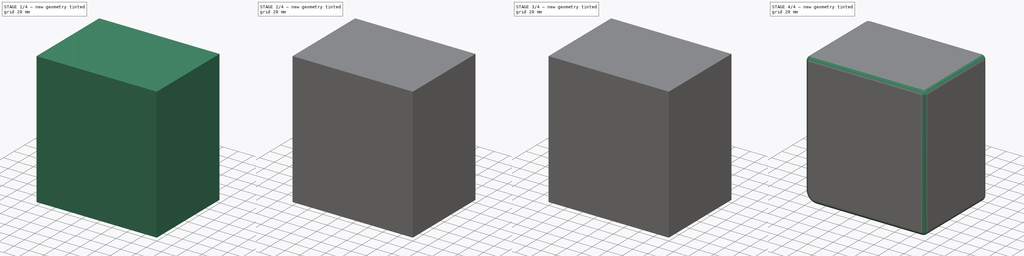
[diagram: build sequence overview — one tinted view per stage of 4, left to right]
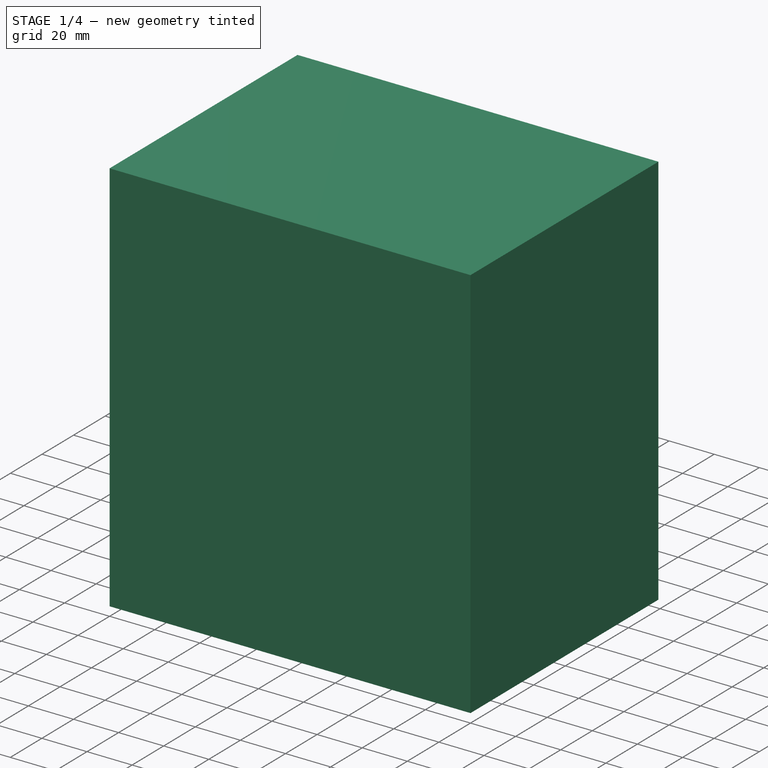
[diagram: stage 1 of 4 — iso view after this stage's code; geometry added in this stage tinted green]
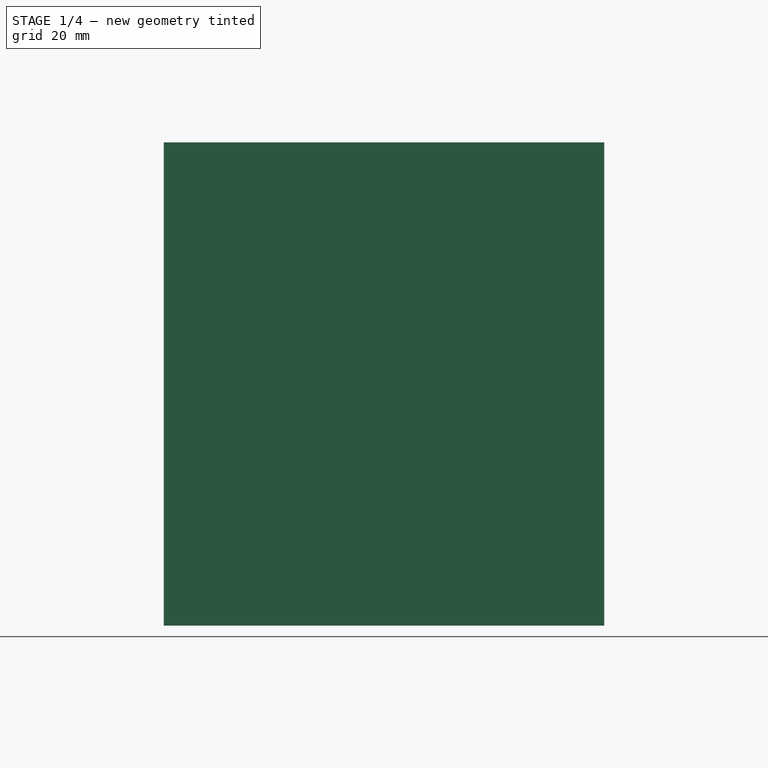
[diagram: stage 1 of 4 — front view after this stage's code; geometry added in this stage tinted green]
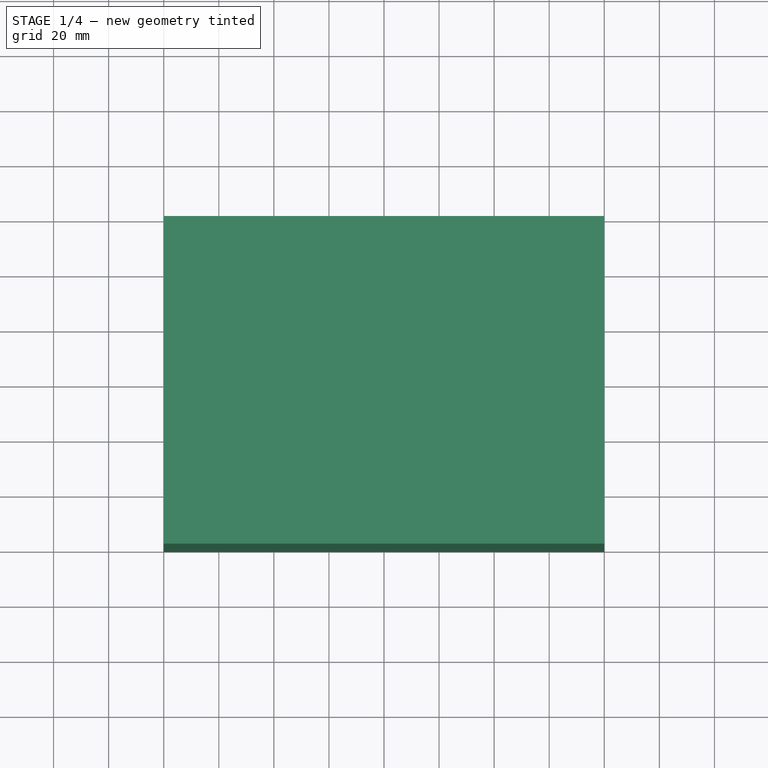
[diagram: stage 1 of 4 — top view after this stage's code; geometry added in this stage tinted green]
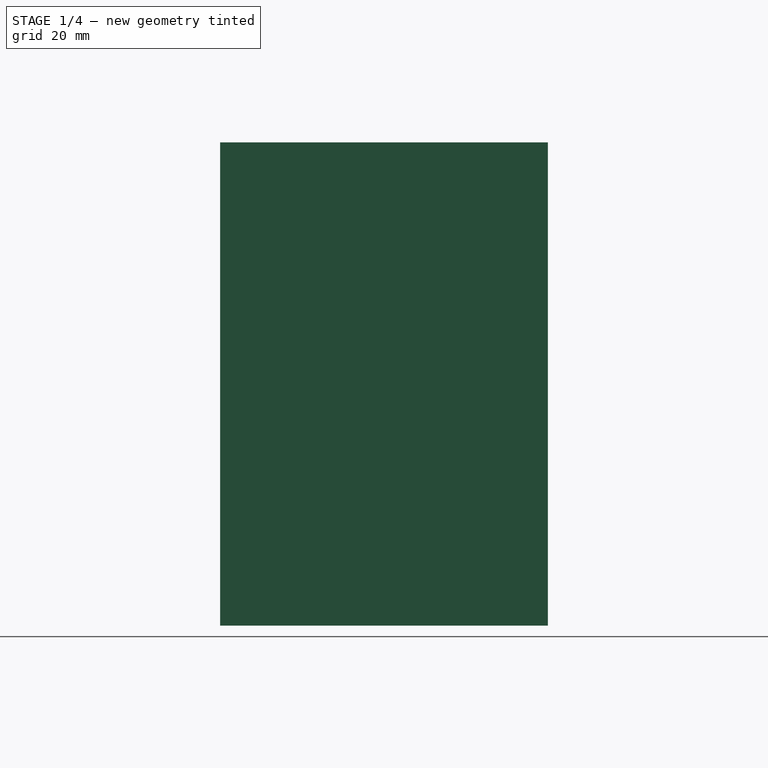
[diagram: stage 1 of 4 — right view after this stage's code; geometry added in this stage tinted green]
FCSTD DOCUMENT  (FreeCAD 0.18R4 (GitTag))
Label: corner-block_front-top-right
License: All rights reserved
LicenseURL: http://en.wikipedia.org/wiki/All_rights_reserved
objects: Sketcher::SketchObject×6, PartDesign::Pad×3, PartDesign::Pocket×3, PartDesign::Fillet×2, PartDesign::Thickness×1, PartDesign::Body×1
note: 22 computed .brp shape members not serialized (recipe doc carries the construction recipe); baked Part::Feature solids carry a one-line shape summary decoded from their .brp

FEATURE [Sketcher::SketchObject] Sketch
  MapMode = 5
  Support = -> [XY_Plane]
  sketch-geometry (4):
    g0: LineSegment StartX=0 StartY=0 StartZ=0 EndX=160 EndY=0 EndZ=0
    g1: LineSegment StartX=160 StartY=0 StartZ=0 EndX=160 EndY=119 EndZ=0
    g2: LineSegment StartX=160 StartY=119 StartZ=0 EndX=0 EndY=119 EndZ=0
    g3: LineSegment StartX=0 StartY=119 StartZ=0 EndX=0 EndY=0 EndZ=0
  constraints (11):
    c: Coincident(g0,g1)
    c: Coincident(g1,g2)
    c: Coincident(g2,g3)
    c: Coincident(g3,g0)
    c: Horizontal(g0)
    c: Horizontal(g2)
    c: Vertical(g1)
    c: Vertical(g3)
    c: Coincident(g0,g-1)
    c: DistanceY(g1,g1) = 119
    c: DistanceX(g0,g0) = 160
FEATURE [PartDesign::Pad] Pad
  Length = 175.5
  Length2 = 100
  Profile = -> Sketch
  Refine = true
  Type = 0
FEATURE [PartDesign::Thickness] Thickness
  Base = -> Pad [Face3]
  BaseFeature = -> Pad
  Join = 1
  Mode = 0
  Reversed = true
  Value = 11
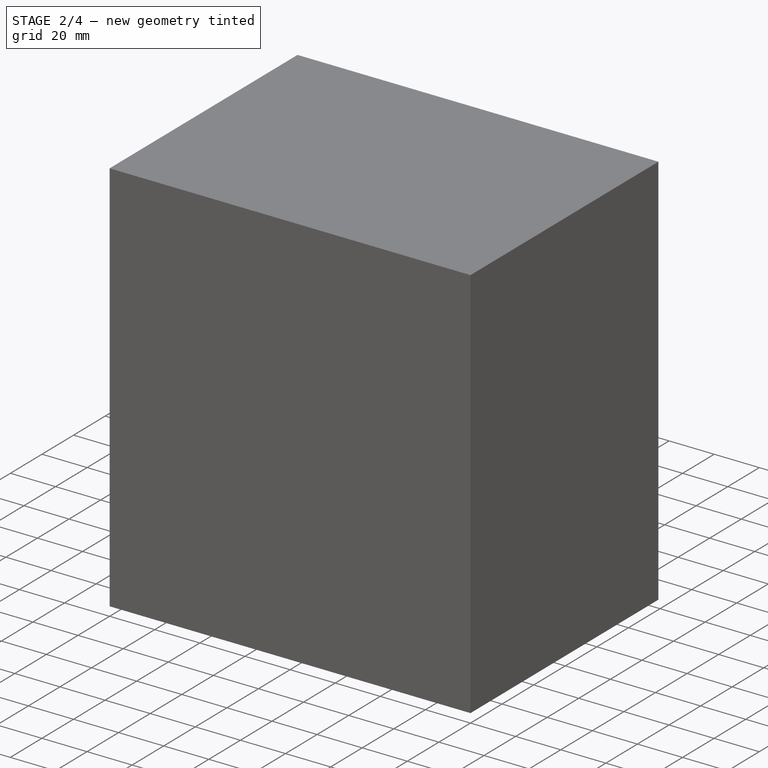
[diagram: stage 2 of 4 — iso view after this stage's code; geometry added in this stage tinted green]
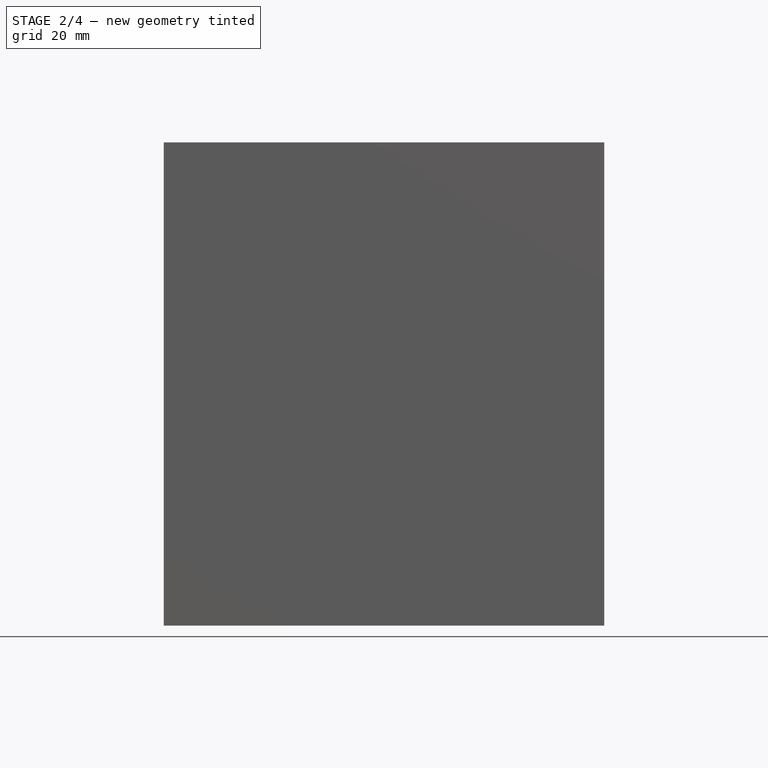
[diagram: stage 2 of 4 — front view after this stage's code; geometry added in this stage tinted green]
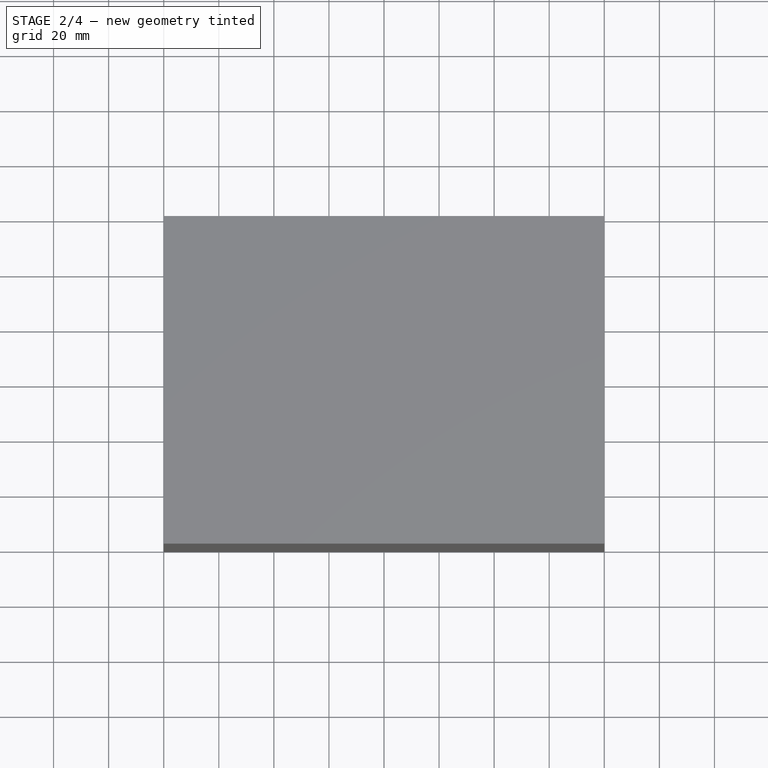
[diagram: stage 2 of 4 — top view after this stage's code; geometry added in this stage tinted green]
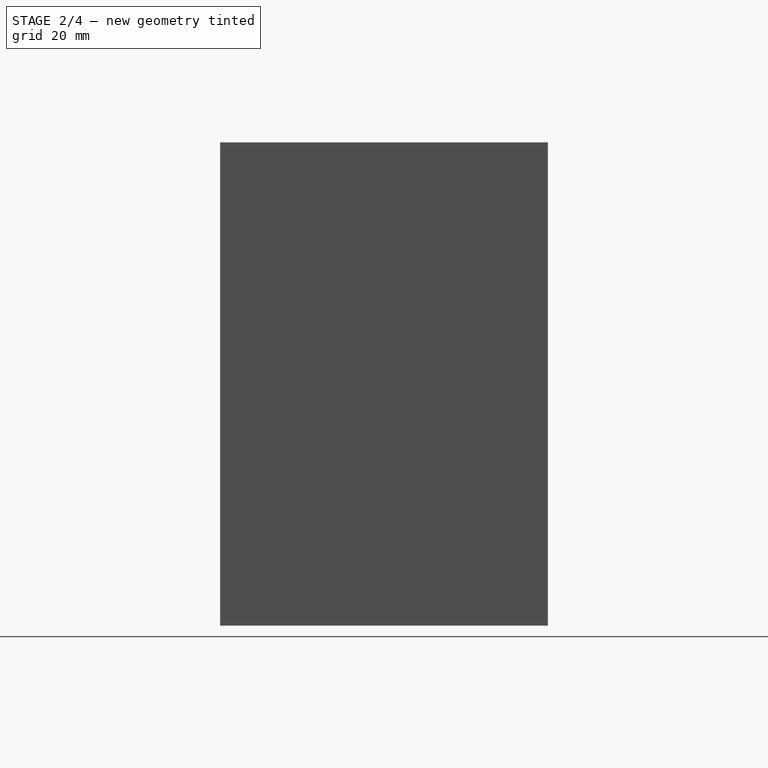
[diagram: stage 2 of 4 — right view after this stage's code; geometry added in this stage tinted green]
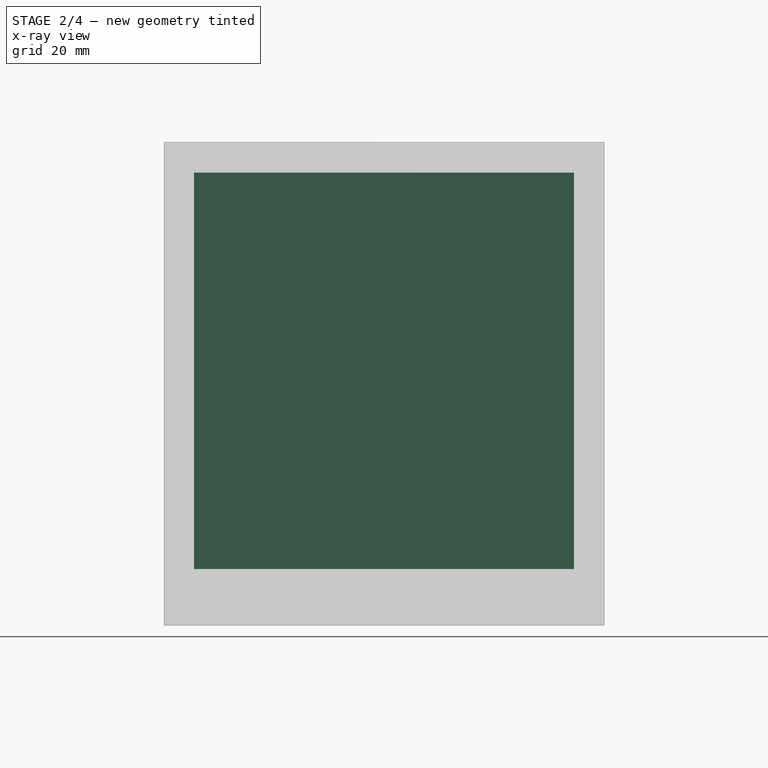
[diagram: stage 2 of 4 — x-ray composite at the front view; earlier geometry ghosted, this stage's added geometry solid]
FEATURE [Sketcher::SketchObject] Sketch001
  ExternalGeometry = -> [Thickness]
  MapMode = 5
  Placement = pos=(0,119,0) rot=(0,0.707107,0.707107;3.14159rad)
  Support = -> [Thickness]
  sketch-geometry (4):
    g0: LineSegment StartX=-149 StartY=11 StartZ=0 EndX=-11 EndY=11 EndZ=0
    g1: LineSegment StartX=-11 StartY=11 StartZ=0 EndX=-11 EndY=20.5 EndZ=0
    g2: LineSegment StartX=-11 StartY=20.5 StartZ=0 EndX=-149 EndY=20.5 EndZ=0
    g3: LineSegment StartX=-149 StartY=20.5 StartZ=0 EndX=-149 EndY=11 EndZ=0
  constraints (10):
    c: Coincident(g0,g1)
    c: Coincident(g1,g2)
    c: Coincident(g2,g3)
    c: Coincident(g3,g0)
    c: Horizontal(g2)
    c: Vertical(g1)
    c: Vertical(g3)
    c: Coincident(g0,g-3)
    c: DistanceY(g-1,g1) = 20.5
    c: Coincident(g0,g-3)
FEATURE [PartDesign::Pad] Pad001
  BaseFeature = -> Thickness
  Length = 10
  Length2 = 100
  Profile = -> Sketch001
  Refine = true
  Reversed = true
  Type = 3
  UpToFace = -> Thickness [Face7]
FEATURE [Sketcher::SketchObject] Sketch002
  ExternalGeometry = -> [Pad001]
  MapMode = 5
  Placement = pos=(0,119,0) rot=(0,0.707107,0.707107;3.14159rad)
  Support = -> [Pad001]
  sketch-geometry (4):
    g0: LineSegment StartX=0 StartY=0 StartZ=0 EndX=-160 EndY=0 EndZ=0
    g1: LineSegment StartX=-160 StartY=0 StartZ=0 EndX=-160 EndY=175.5 EndZ=0
    g2: LineSegment StartX=-160 StartY=175.5 StartZ=0 EndX=0 EndY=175.5 EndZ=0
    g3: LineSegment StartX=0 StartY=175.5 StartZ=0 EndX=0 EndY=0 EndZ=0
  constraints (10):
    c: Coincident(g0,g1)
    c: Coincident(g1,g2)
    c: Coincident(g2,g3)
    c: Coincident(g3,g0)
    c: Horizontal(g0)
    c: Horizontal(g2)
    c: Vertical(g1)
    c: Vertical(g3)
    c: Coincident(g0,g-1)
    c: Coincident(g1,g-3)
FEATURE [PartDesign::Pad] Pad002
  BaseFeature = -> Pad001
  Length = 28.5
  Length2 = 100
  Profile = -> Sketch002
  Refine = true
  Reversed = true
  Type = 0
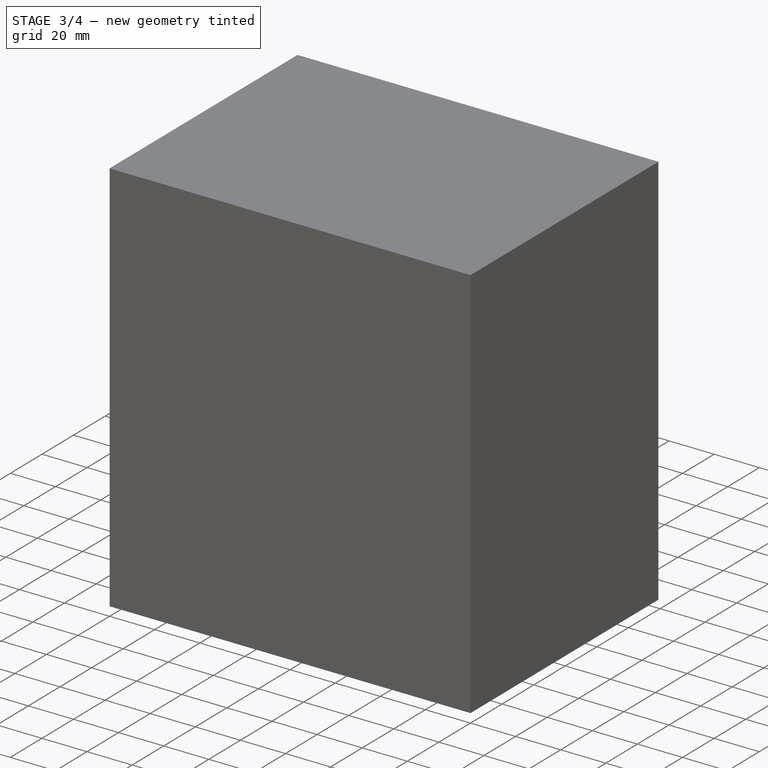
[diagram: stage 3 of 4 — iso view after this stage's code; geometry added in this stage tinted green]
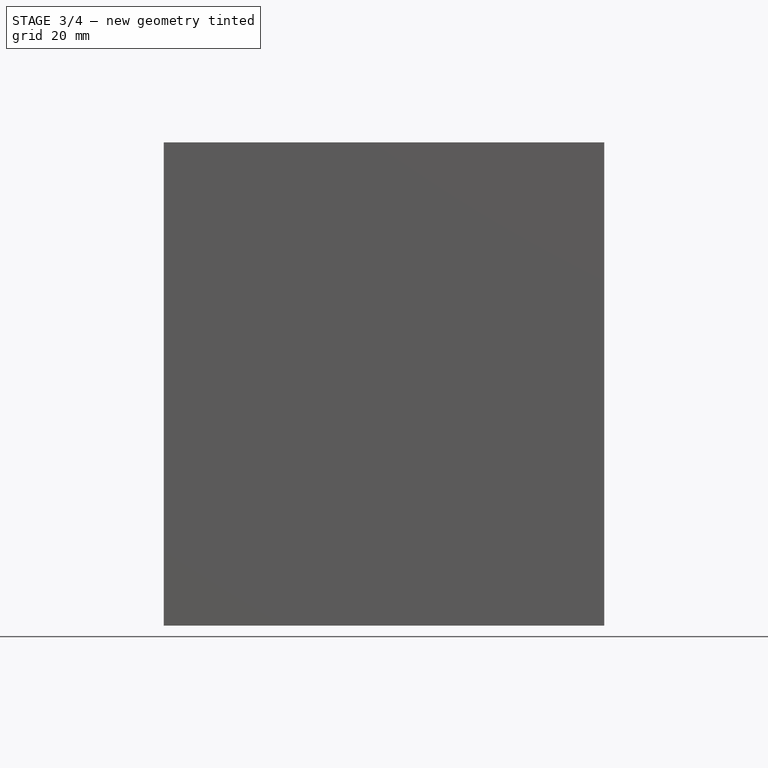
[diagram: stage 3 of 4 — front view after this stage's code; geometry added in this stage tinted green]
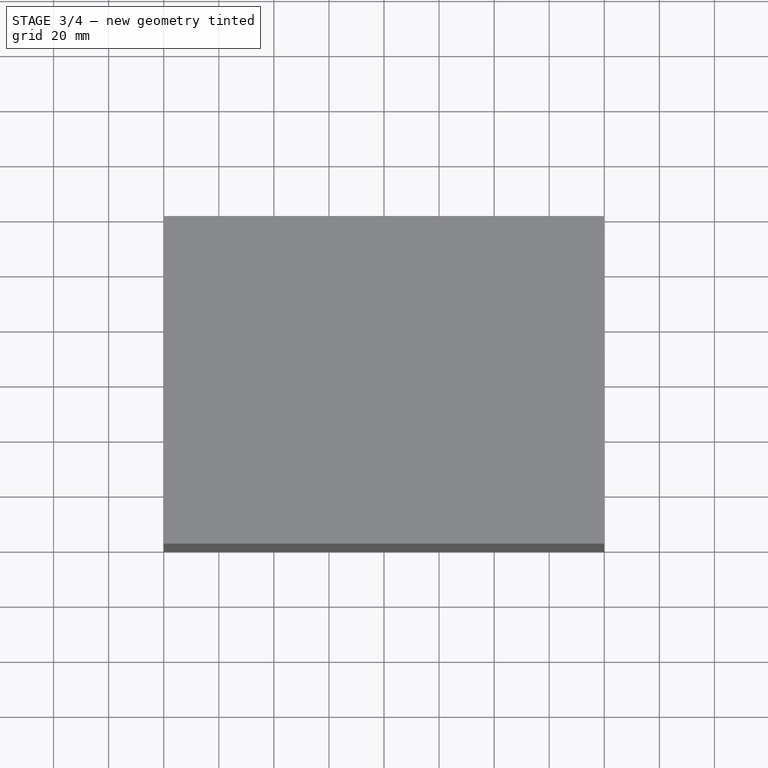
[diagram: stage 3 of 4 — top view after this stage's code; geometry added in this stage tinted green]
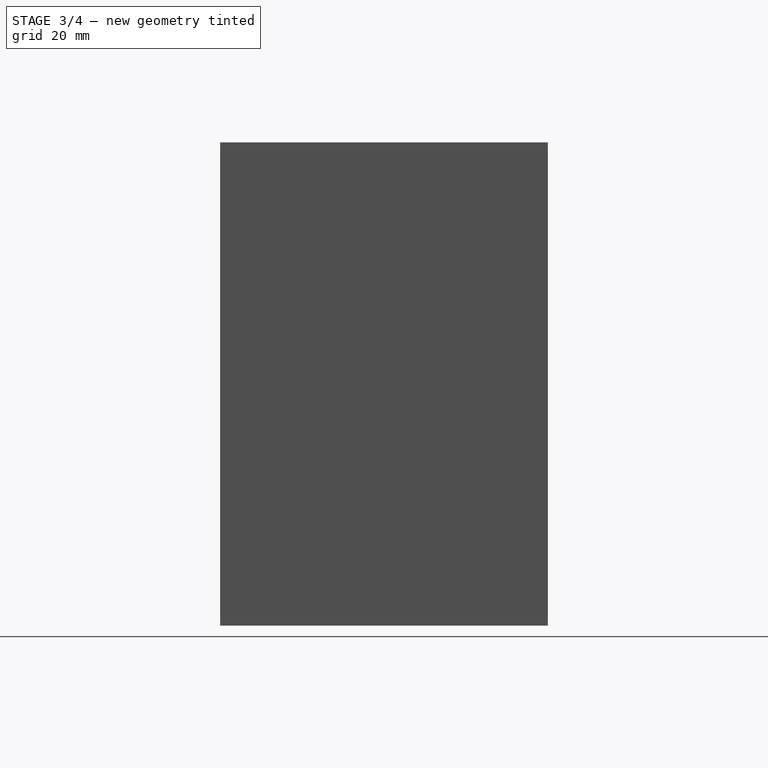
[diagram: stage 3 of 4 — right view after this stage's code; geometry added in this stage tinted green]
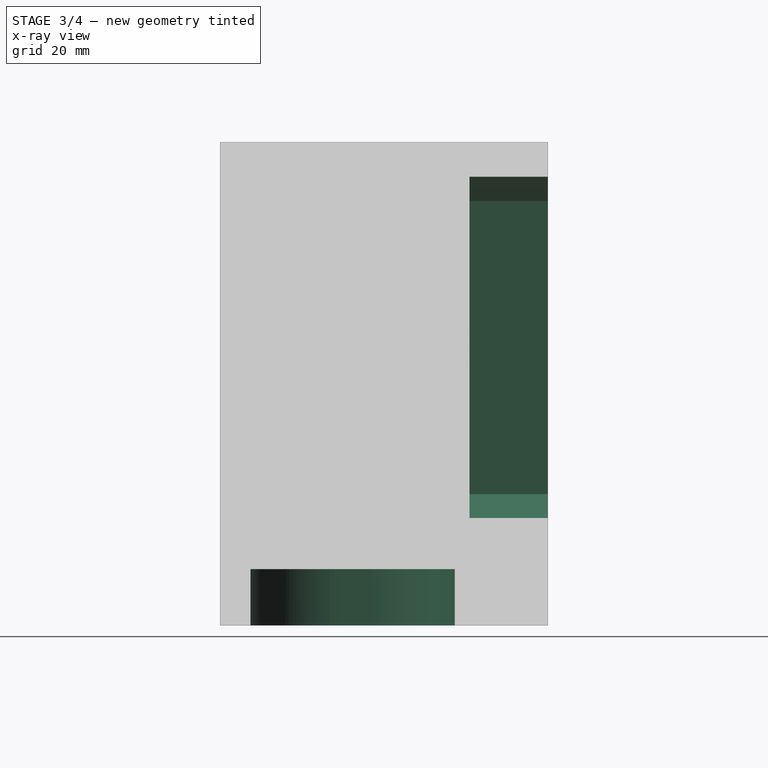
[diagram: stage 3 of 4 — x-ray composite at the right view; earlier geometry ghosted, this stage's added geometry solid]
FEATURE [Sketcher::SketchObject] Sketch003
  ExternalGeometry = -> [Pad002]
  MapMode = 5
  Placement = pos=(0,0,0) rot=(1,0,0;3.14159rad)
  Support = -> [Pad002]
  sketch-geometry (4):
    g0: ArcOfCircle CenterX=89 CenterY=-42.75 CenterZ=0 NormalX=0 NormalY=0 NormalZ=1 AngleXU=0 Radius=31.75 StartAngle=2.2975e-06 EndAngle=3.14159
    g1: ArcOfCircle CenterX=89 CenterY=-53.45 CenterZ=0 NormalX=0 NormalY=0 NormalZ=1 AngleXU=0 Radius=31.75 StartAngle=3.14159 EndAngle=6.28319
    g2: LineSegment StartX=57.25 StartY=-42.75 StartZ=0 EndX=57.25 EndY=-53.4501 EndZ=0
    g3: LineSegment StartX=120.75 StartY=-53.4499 StartZ=0 EndX=120.75 EndY=-42.7499 EndZ=0
  constraints (14):
    c: Equal(g0,g1)
    c: Radius(g0) = 31.75
    c: DistanceY(g-4,g1) = 65.55
    c: DistanceY(g0,g-3) = 42.75
    c: Coincident(g0,g2)
    c: Coincident(g1,g2)
    c: Coincident(g1,g3)
    c: Coincident(g0,g3)
    c: Tangent(g1,g2)
    c: Tangent(g2,g0)
    c: Tangent(g3,g0)
    c: Tangent(g1,g3)
    c: DistanceX(g1,g-4) = 71
    c: DistanceX(g0,g-3) = 71
FEATURE [PartDesign::Pocket] Pocket
  BaseFeature = -> Pad002
  Length = 20.5
  Length2 = 100
  Profile = -> Sketch003
  Refine = true
  Type = 0
FEATURE [Sketcher::SketchObject] Sketch004
  MapMode = 5
  Placement = pos=(0,0,0) rot=(0.57735,-0.57735,-0.57735;2.0944rad)
  Support = -> [Pocket]
  sketch-geometry (4):
    g0: ArcOfCircle CenterX=-65 CenterY=101.5 CenterZ=0 NormalX=0 NormalY=0 NormalZ=1 AngleXU=0 Radius=25.5 StartAngle=1.5708 EndAngle=4.71239
    g1: ArcOfCircle CenterX=-36.5 CenterY=101.5 CenterZ=0 NormalX=0 NormalY=0 NormalZ=1 AngleXU=0 Radius=25.5 StartAngle=4.71239 EndAngle=7.85398
    g2: LineSegment StartX=-65 StartY=76 StartZ=0 EndX=-36.5 EndY=76 EndZ=0
    g3: LineSegment StartX=-65 StartY=127 StartZ=0 EndX=-36.5 EndY=127 EndZ=0
  constraints (10):
    c: Tangent(g0,g3) = 1.5708
    c: Tangent(g0,g2) = -1.5708
    c: Tangent(g2,g1) = -1.5708
    c: Tangent(g3,g1) = 1.5708
    c: Horizontal(g2)
    c: Equal(g0,g1)
    c: Radius(g0) = 25.5
    c: DistanceX(g3,g3) = 28.5
    c: DistanceX(g1,g-1) = 36.5
    c: DistanceY(g-1,g0) = 101.5
FEATURE [PartDesign::Pocket] Pocket001
  BaseFeature = -> Pocket
  Length = 11
  Length2 = 100
  Profile = -> Sketch004
  Refine = true
  Type = 0
FEATURE [Sketcher::SketchObject] Sketch005
  ExternalGeometry = -> [Pocket001]
  MapMode = 5
  Placement = pos=(0,119,0) rot=(0,0.707107,0.707107;3.14159rad)
  Support = -> [Pocket001]
  sketch-geometry (5):
    g0: ArcOfCircle CenterX=-89 CenterY=101 CenterZ=0 NormalX=0 NormalY=0 NormalZ=1 AngleXU=0 Radius=62 StartAngle=1.03317 EndAngle=2.10842
    g1: LineSegment StartX=-57.25 StartY=154.254 StartZ=0 EndX=-57.25 EndY=47.7465 EndZ=0
    g2: LineSegment StartX=-120.75 StartY=47.7465 StartZ=0 EndX=-120.75 EndY=47.7465 EndZ=0
    g3: LineSegment StartX=-120.75 StartY=47.7465 StartZ=0 EndX=-120.75 EndY=154.254 EndZ=0
    g4: ArcOfCircle CenterX=-89 CenterY=101 CenterZ=0 NormalX=0 NormalY=0 NormalZ=1 AngleXU=0 Radius=62 StartAngle=4.17476 EndAngle=5.25001
  constraints (16):
    c: Coincident(g2,g3)
    c: Horizontal(g2)
    c: Vertical(g1)
    c: Vertical(g3)
    c: PointOnObject(g2,g0)
    c: Coincident(g4,g1)
    c: Equal(g0,g4)
    c: Coincident(g4,g2)
    c: Coincident(g0,g4)
    c: Coincident(g0,g3)
    c: Coincident(g0,g1)
    c: DistanceX(g0,g0) = 63.5
    c: Radius(g0) = 62
    c: DistanceX(g0,g0) = 31.75
    c: DistanceY(g-1,g0) = 101
    c: DistanceX(g-3,g2) = 39.25
FEATURE [PartDesign::Pocket] Pocket002
  BaseFeature = -> Pocket001
  Length = 32
  Length2 = 1
  Profile = -> Sketch005
  Refine = true
  Type = 4
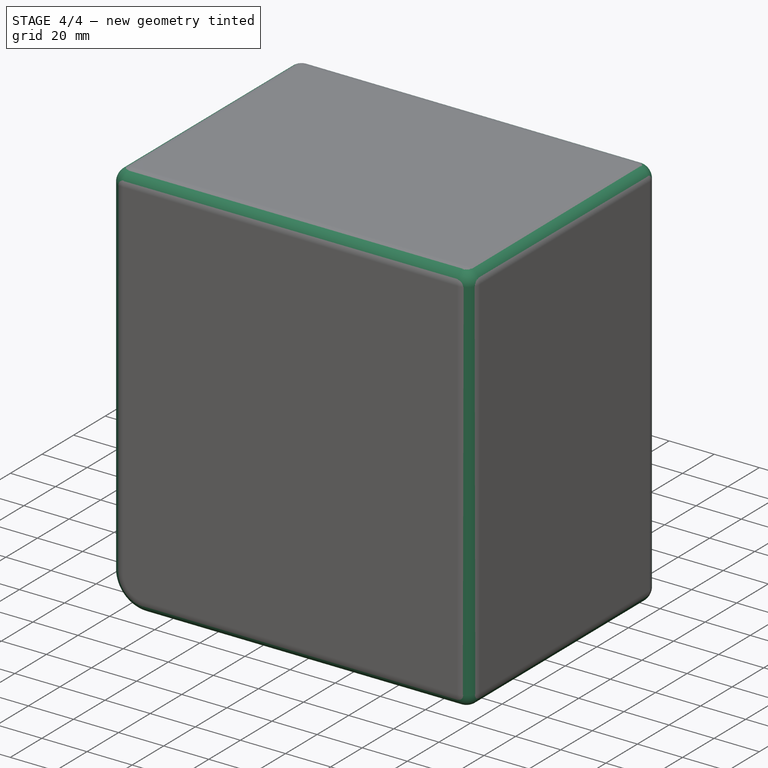
[diagram: stage 4 of 4 — iso view after this stage's code; geometry added in this stage tinted green]
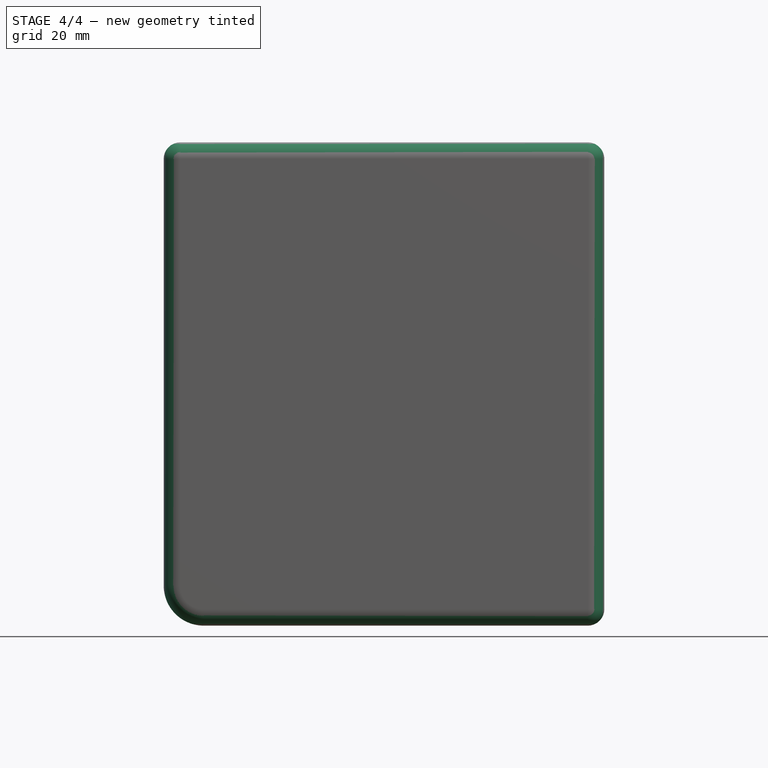
[diagram: stage 4 of 4 — front view after this stage's code; geometry added in this stage tinted green]
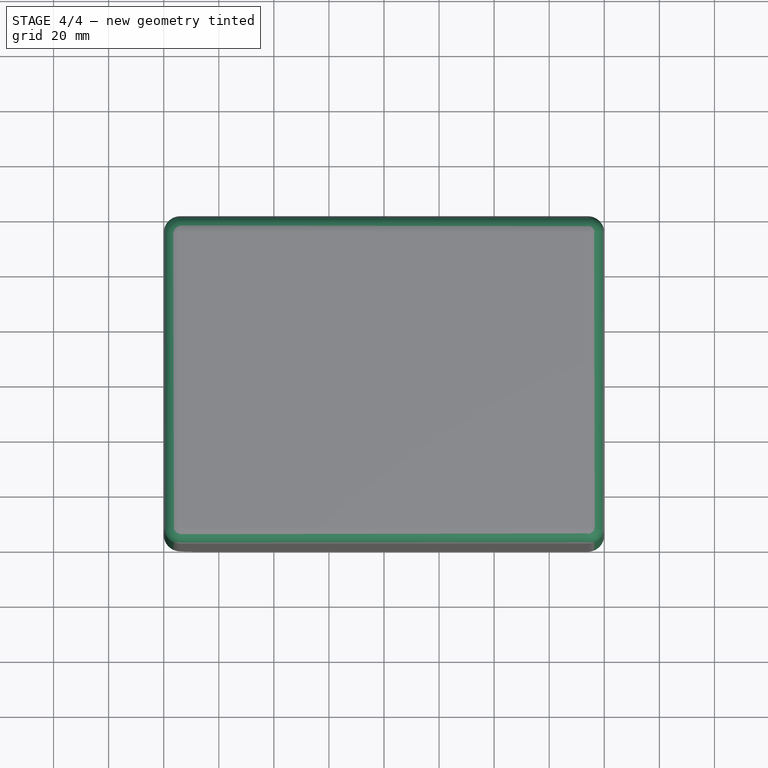
[diagram: stage 4 of 4 — top view after this stage's code; geometry added in this stage tinted green]
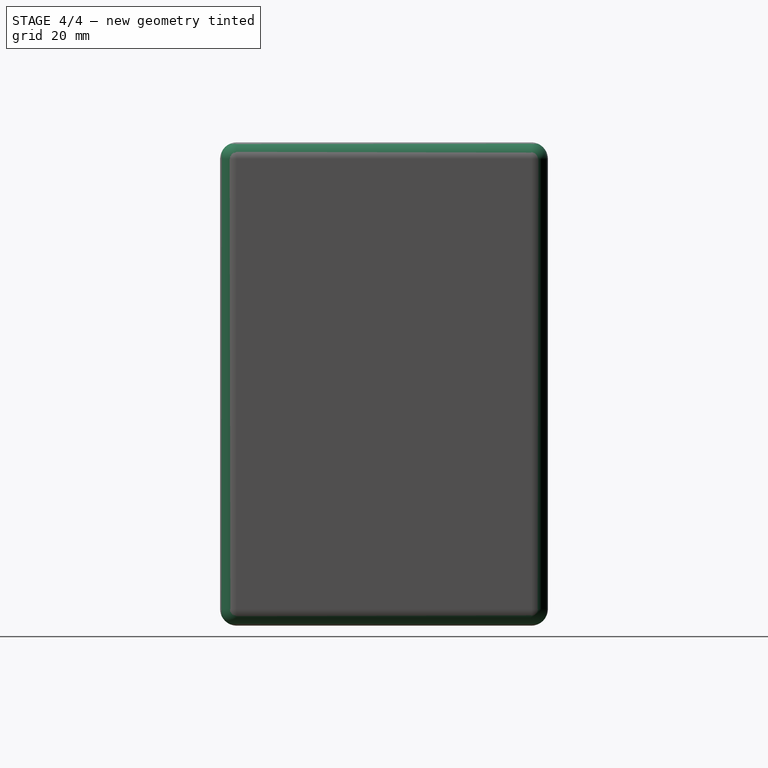
[diagram: stage 4 of 4 — right view after this stage's code; geometry added in this stage tinted green]
FEATURE [PartDesign::Fillet] Fillet
  Base = -> Pocket002 [Edge5]
  BaseFeature = -> Pocket002
  Radius = 14.5
FEATURE [PartDesign::Fillet] Fillet001
  Base = -> Fillet [Edge17,Edge13,Edge8,Edge16,Edge15,Edge23,Edge18,Edge5,Edge4,Edge2,Edge1,Edge3,Edge7]
  BaseFeature = -> Fillet
  Radius = 6
FEATURE [PartDesign::Body] Body
  Group = -> [Sketch,Pad,Thickness,Sketch001,Pad001,Sketch002,Pad002,Sketch003,Pocket,Sketch004,Pocket001,Sketch005,Pocket002,Fillet,Fillet001]
  Origin = -> Origin
  Tip = -> Fillet001
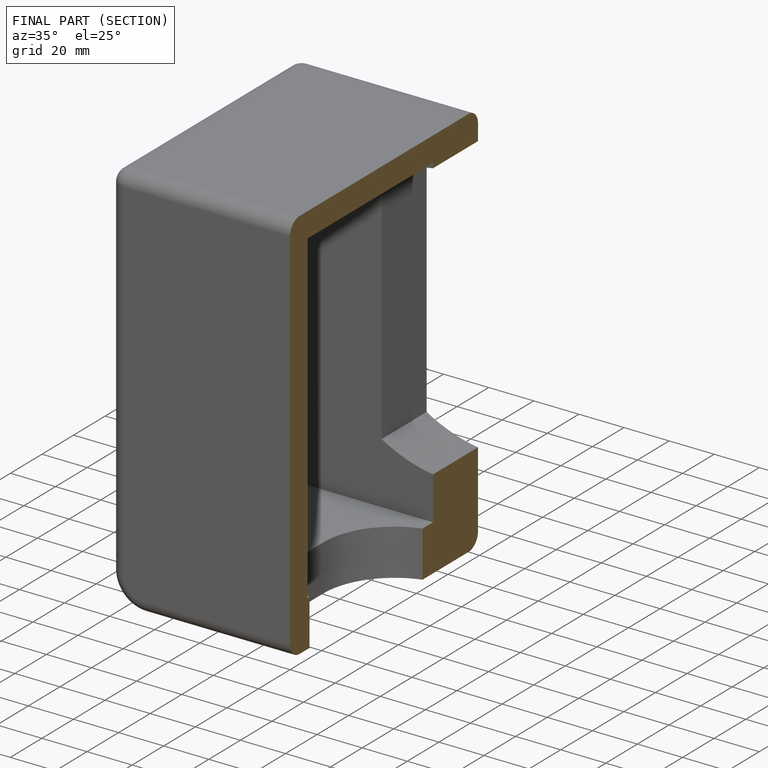
[diagram: finished part — half-section view (interior)]
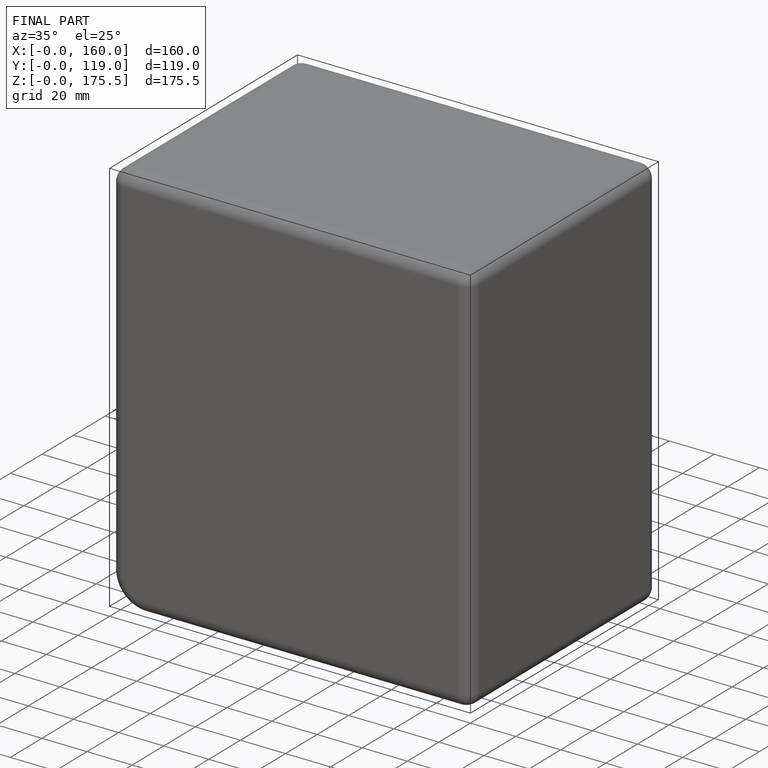
[diagram: finished part — iso view with bounding-box wireframe]
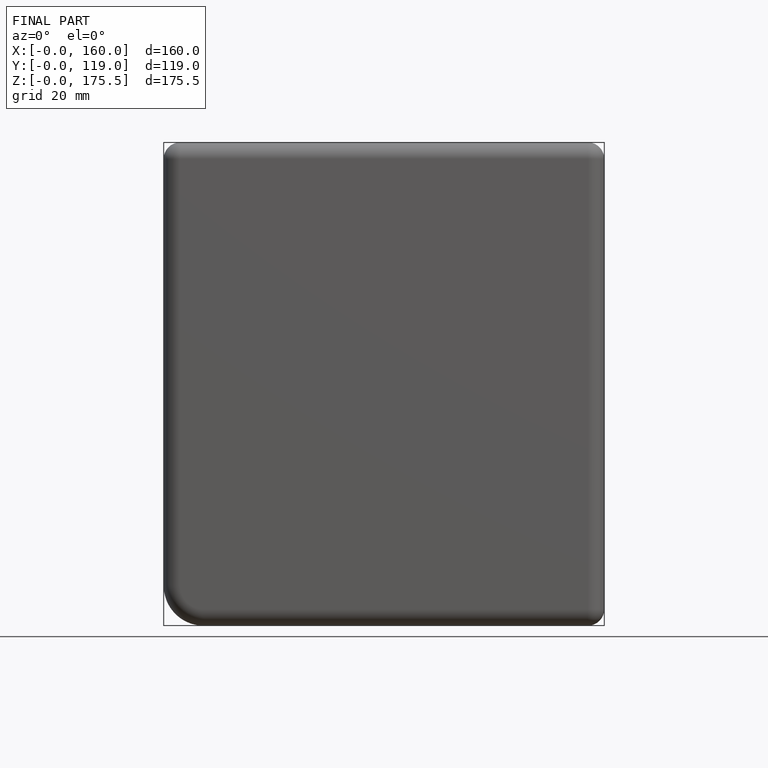
[diagram: finished part — front view with bounding-box wireframe]
